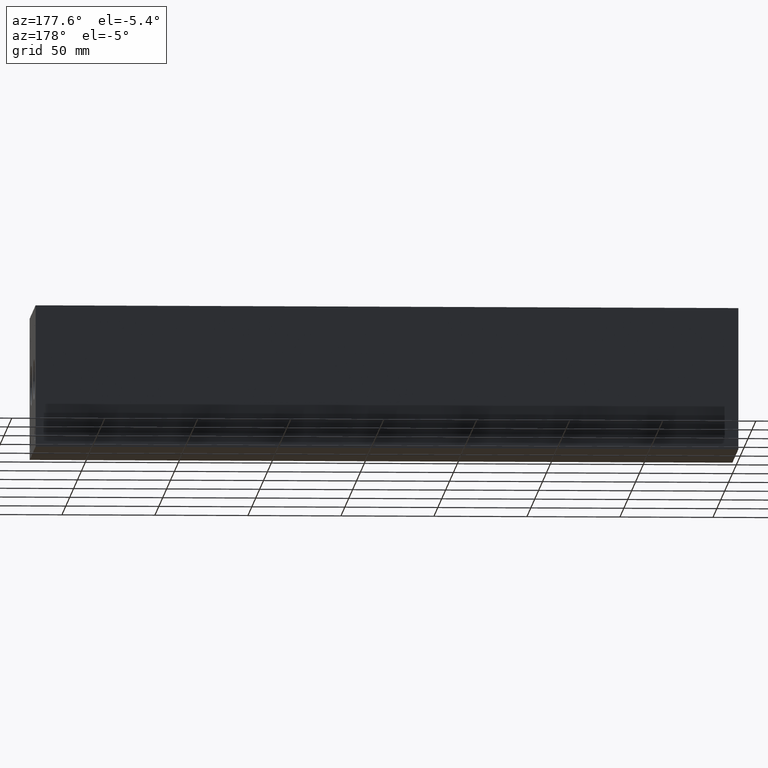
[diagram: clean part render]
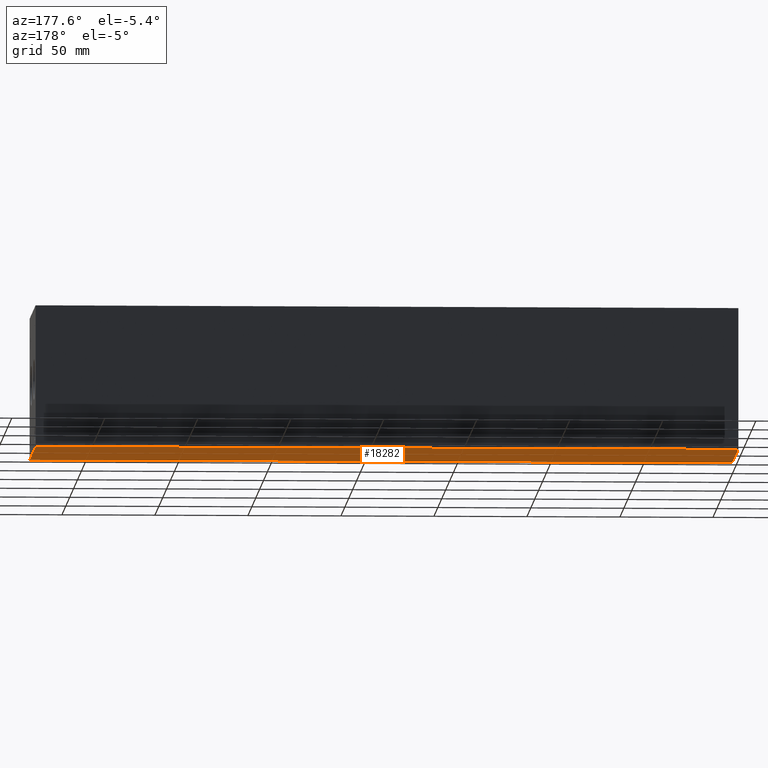
[diagram: same view with one face highlighted and labeled with its STEP entity id]
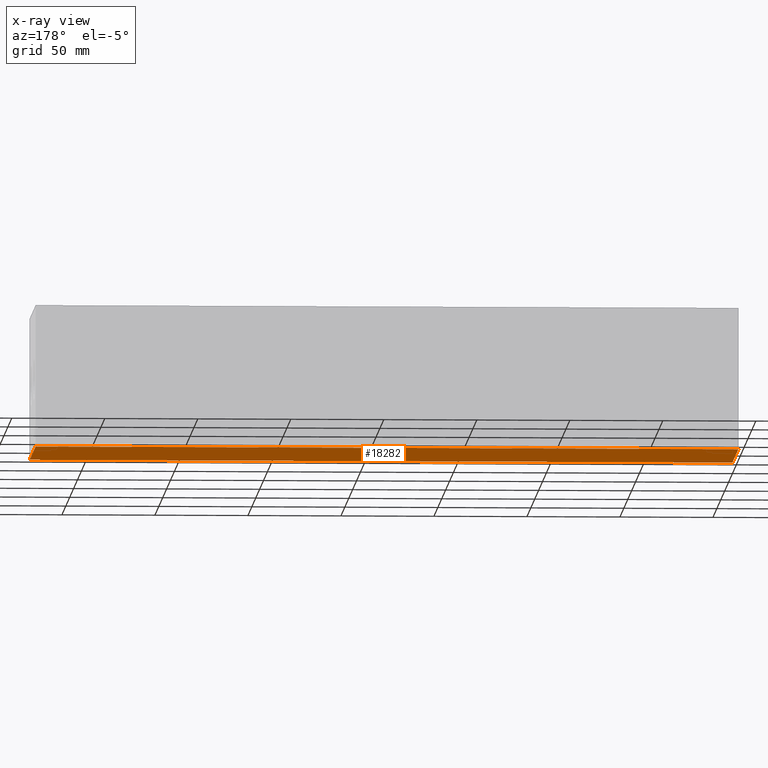
[diagram: x-ray of the same camera — body ghosted, the highlighted face saturated]
A machine part, auxiliary view. The second image highlights one B-rep face of the part: STEP entity #18282.
The next image is the same camera in x-ray: the body ghosted, the highlighted face saturated — about 0% of this face is hidden behind the body in this view.
In plain terms, the highlighted planar face has unit normal (0, 0, 1).
Its self-contained STEP definition (entity closure, byte-faithful):
#1448=PLANE('',#19524);
#2393=FACE_OUTER_BOUND('',#3545,.T.);
#3545=EDGE_LOOP('',(#16486,#16487,#16488,#16489));
#3590=LINE('',#23906,#5182);
#4827=LINE('',#29767,#6419);
#4886=LINE('',#30039,#6478);
#5136=LINE('',#31595,#6728);
#5182=VECTOR('',#19595,10.);
#6419=VECTOR('',#21714,10.);
#6478=VECTOR('',#21827,10.);
#6728=VECTOR('',#23565,10.);
#7206=VERTEX_POINT('',#23904);
#7207=VERTEX_POINT('',#23905);
#8318=VERTEX_POINT('',#29766);
#8376=VERTEX_POINT('',#30038);
#9011=EDGE_CURVE('',#7206,#7207,#3590,.T.);
#10662=EDGE_CURVE('',#7207,#8318,#4827,.T.);
#10745=EDGE_CURVE('',#8376,#7206,#4886,.T.);
#11454=EDGE_CURVE('',#8318,#8376,#5136,.T.);
#16486=ORIENTED_EDGE('',*,*,#9011,.F.);
#16487=ORIENTED_EDGE('',*,*,#10745,.F.);
#16488=ORIENTED_EDGE('',*,*,#11454,.F.);
#16489=ORIENTED_EDGE('',*,*,#10662,.F.);
#18282=ADVANCED_FACE('',(#2393),#1448,.F.);
#19524=AXIS2_PLACEMENT_3D('',#31600,#23573,#23574);
#19595=DIRECTION('',(1.,0.,0.));
#21714=DIRECTION('',(0.,1.,0.));
#21827=DIRECTION('',(0.,-1.,0.));
#23565=DIRECTION('',(-1.,0.,0.));
#23573=DIRECTION('center_axis',(0.,0.,1.));
#23574=DIRECTION('ref_axis',(1.,0.,0.));
#23904=CARTESIAN_POINT('',(0.,0.,0.));
#23905=CARTESIAN_POINT('',(377.825,0.,0.));
#23906=CARTESIAN_POINT('',(0.,0.,0.));
#29766=CARTESIAN_POINT('',(377.825,76.2,0.));
#29767=CARTESIAN_POINT('',(377.825,0.,0.));
#30038=CARTESIAN_POINT('',(0.,76.2,0.));
#30039=CARTESIAN_POINT('',(0.,76.2,0.));
#31595=CARTESIAN_POINT('',(377.825,76.2,0.));
#31600=CARTESIAN_POINT('Origin',(188.9125,38.1,0.));